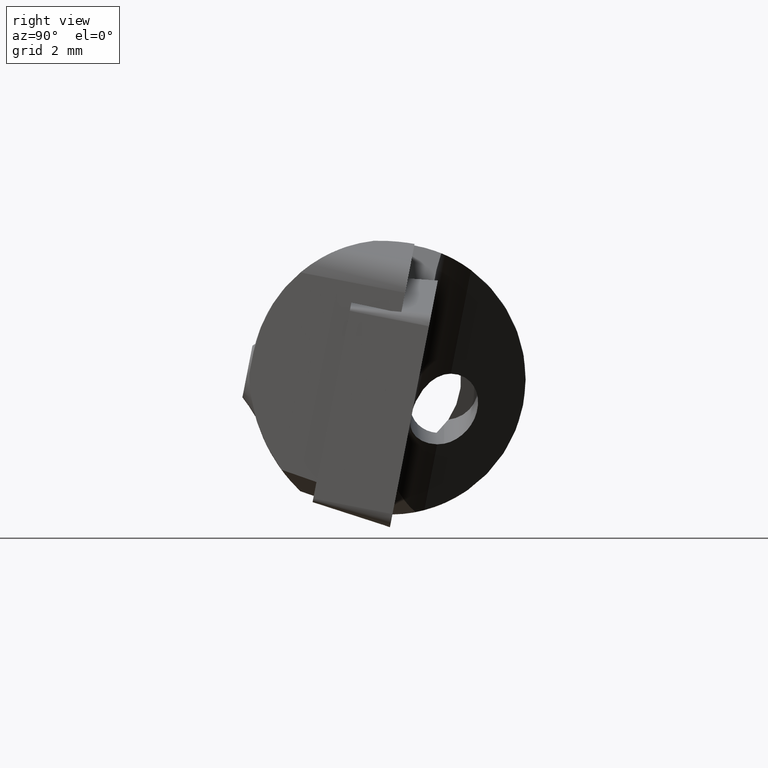
[diagram: clean part render]
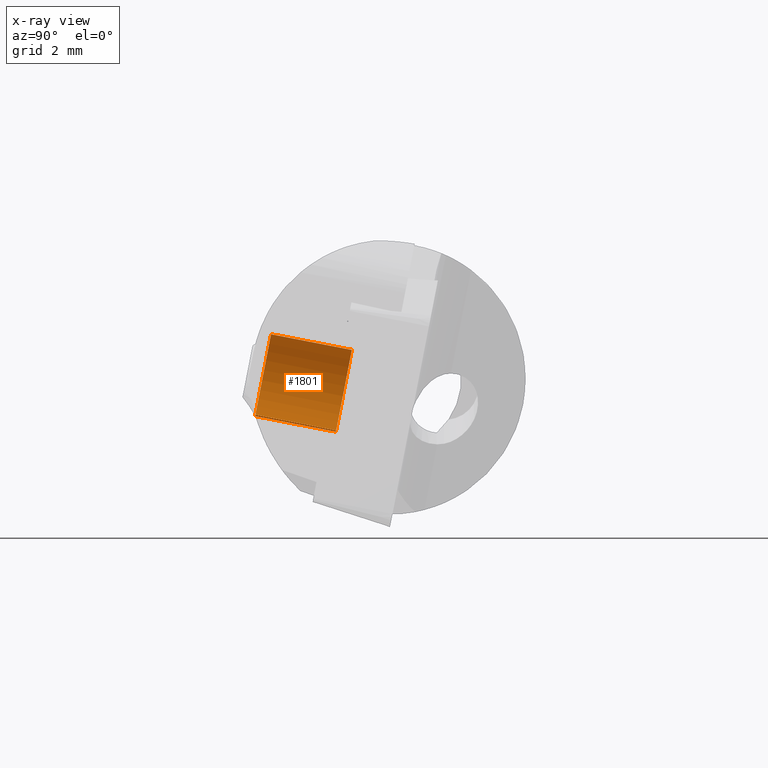
[diagram: x-ray — body ghosted, one internal face saturated and labeled with its STEP entity id]
A machine part, right view, then the same camera in x-ray: the body is ghosted and one INTERNAL B-rep face — a face not visible from any outside direction — is saturated and labeled: STEP entity #1801.
In plain terms, the highlighted cylindrical surface (partial cylindrical patch) has radius 1.25 mm, axis along (0, 0.9816, -0.1908).
Its self-contained STEP definition (entity closure, byte-faithful):
#36 = EDGE_CURVE ( 'NONE', #847, #401, #2053, .T. ) ;
#158 = DIRECTION ( 'NONE',  ( -1.000000000000000000, 9.189697613987098100E-016, 1.873501354054944300E-016 ) ) ;
#359 = EDGE_LOOP ( 'NONE', ( #3370, #2018, #2623, #792 ) ) ;
#401 = VERTEX_POINT ( 'NONE', #1526 ) ;
#432 = CIRCLE ( 'NONE', #458, 1.250000000000000200 ) ;
#458 = AXIS2_PLACEMENT_3D ( 'NONE', #4106, #1930, #4471 ) ;
#641 = CARTESIAN_POINT ( 'NONE',  ( -1.162574611635989600, 1.040834085586084300E-014, 3.469446951953614200E-015 ) ) ;
#792 = ORIENTED_EDGE ( 'NONE', *, *, #878, .F. ) ;
#847 = VERTEX_POINT ( 'NONE', #2583 ) ;
#878 = EDGE_CURVE ( 'NONE', #401, #3330, #2323, .T. ) ;
#1330 = CARTESIAN_POINT ( 'NONE',  ( 2.099999999999997900, 2.038064609113411600E-014, 1.249999999999998400 ) ) ;
#1526 = CARTESIAN_POINT ( 'NONE',  ( 2.099999999999997400, 6.884999078245216600E-015, -1.250000000000001800 ) ) ;
#1801 = ADVANCED_FACE ( 'NONE', ( #4531 ), #2587, .T. ) ;
#1930 = DIRECTION ( 'NONE',  ( -1.000000000000000000, 9.189697613987098100E-016, 1.873501354054944300E-016 ) ) ;
#1985 = EDGE_CURVE ( 'NONE', #2790, #3330, #4560, .T. ) ;
#2018 = ORIENTED_EDGE ( 'NONE', *, *, #2024, .T. ) ;
#2024 = EDGE_CURVE ( 'NONE', #847, #2790, #432, .T. ) ;
#2053 = LINE ( 'NONE', #3910, #3012 ) ;
#2288 = DIRECTION ( 'NONE',  ( -1.000000000000000000, 9.189697613987098100E-016, 1.873501354054944300E-016 ) ) ;
#2323 = CIRCLE ( 'NONE', #3598, 1.250000000000000200 ) ;
#2328 = CARTESIAN_POINT ( 'NONE',  ( 2.099999999999997900, 2.081668171172168500E-014, -1.734723475976807100E-015 ) ) ;
#2583 = CARTESIAN_POINT ( 'NONE',  ( 4.525000000000001200, 5.306733138644961800E-014, -1.250000000000005800 ) ) ;
#2587 = CYLINDRICAL_SURFACE ( 'NONE', #4297, 1.250000000000000200 ) ;
#2623 = ORIENTED_EDGE ( 'NONE', *, *, #1985, .T. ) ;
#2682 = DIRECTION ( 'NONE',  ( 0.0000000000000000000, -3.488284964700541400E-016, 1.000000000000000000 ) ) ;
#2790 = VERTEX_POINT ( 'NONE', #3597 ) ;
#2874 = VECTOR ( 'NONE', #2288, 1000.000000000000000 ) ;
#3012 = VECTOR ( 'NONE', #4279, 1000.000000000000000 ) ;
#3183 = DIRECTION ( 'NONE',  ( -1.734723475976806800E-016, -3.488284964700553800E-016, 1.000000000000000000 ) ) ;
#3330 = VERTEX_POINT ( 'NONE', #1330 ) ;
#3370 = ORIENTED_EDGE ( 'NONE', *, *, #36, .F. ) ;
#3537 = DIRECTION ( 'NONE',  ( -1.000000000000000000, 9.189697613987098100E-016, 1.873501354054944300E-016 ) ) ;
#3597 = CARTESIAN_POINT ( 'NONE',  ( 4.525000000000001200, 5.204217929538104300E-014, 1.250000000000029500 ) ) ;
#3598 = AXIS2_PLACEMENT_3D ( 'NONE', #2328, #158, #2682 ) ;
#3910 = CARTESIAN_POINT ( 'NONE',  ( -1.162574611635989400, 1.099745732634183000E-014, -1.249999999999996700 ) ) ;
#4106 = CARTESIAN_POINT ( 'NONE',  ( 4.525000000000001200, 1.040834085586084300E-014, 3.469446951953614200E-015 ) ) ;
#4279 = DIRECTION ( 'NONE',  ( -1.000000000000000000, 9.189697613987098100E-016, 1.873501354054944300E-016 ) ) ;
#4297 = AXIS2_PLACEMENT_3D ( 'NONE', #641, #3537, #3183 ) ;
#4452 = CARTESIAN_POINT ( 'NONE',  ( -1.162574611635989900, 9.972305235273273800E-015, 1.250000000000003800 ) ) ;
#4471 = DIRECTION ( 'NONE',  ( 0.0000000000000000000, -3.488284964700553800E-016, 1.000000000000000000 ) ) ;
#4531 = FACE_OUTER_BOUND ( 'NONE', #359, .T. ) ;
#4560 = LINE ( 'NONE', #4452, #2874 ) ;